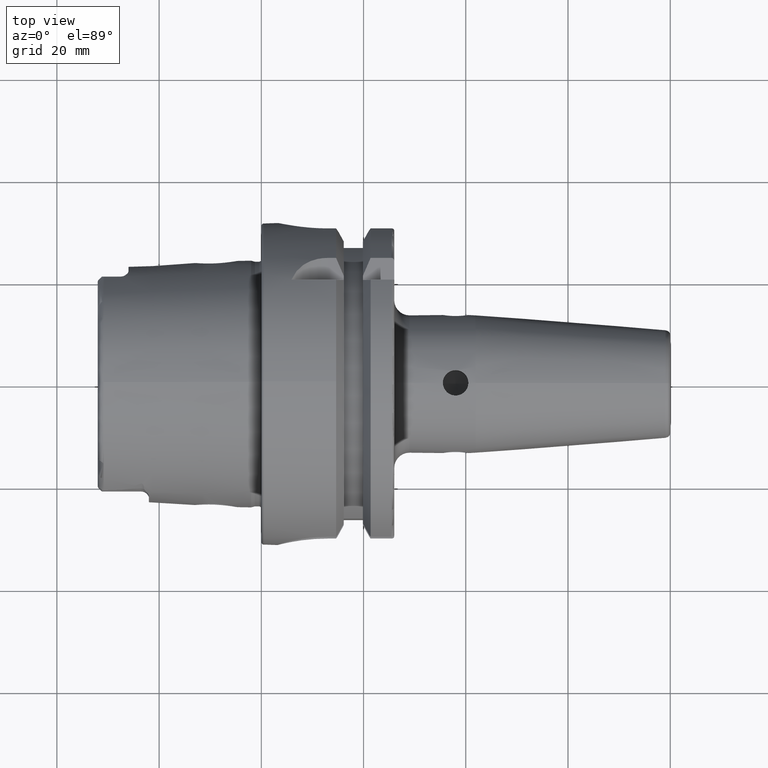
[diagram: clean part render]
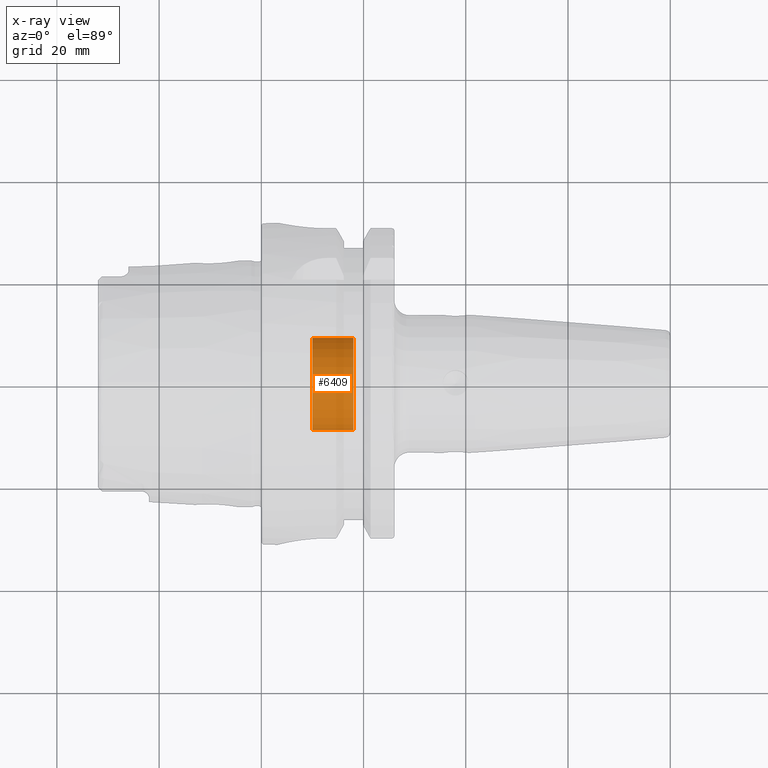
[diagram: x-ray — body ghosted, one internal face saturated and labeled with its STEP entity id]
A machine part, top view, then the same camera in x-ray: the body is ghosted and one INTERNAL B-rep face — a face not visible from any outside direction — is saturated and labeled: STEP entity #6409.
In plain terms, the highlighted cylindrical surface (partial cylindrical patch) has radius 9 mm, axis along (-1, 0, 0).
Its self-contained STEP definition (entity closure, byte-faithful):
#6335=CARTESIAN_POINT('',(1.E1,0.E0,0.E0));
#6336=DIRECTION('',(1.E0,0.E0,0.E0));
#6337=DIRECTION('',(0.E0,1.E0,0.E0));
#6338=AXIS2_PLACEMENT_3D('',#6335,#6336,#6337);
#6340=DIRECTION('',(1.E0,0.E0,0.E0));
#6341=VECTOR('',#6340,8.E0);
#6342=CARTESIAN_POINT('',(1.E1,-9.E0,0.E0));
#6343=LINE('',#6342,#6341);
#6344=DIRECTION('',(1.E0,0.E0,0.E0));
#6345=VECTOR('',#6344,8.E0);
#6346=CARTESIAN_POINT('',(1.E1,9.E0,0.E0));
#6347=LINE('',#6346,#6345);
#6348=CARTESIAN_POINT('',(1.8E1,0.E0,0.E0));
#6349=DIRECTION('',(1.E0,0.E0,0.E0));
#6350=DIRECTION('',(0.E0,1.E0,0.E0));
#6351=AXIS2_PLACEMENT_3D('',#6348,#6349,#6350);
#6368=CARTESIAN_POINT('',(1.8E1,9.E0,0.E0));
#6369=CARTESIAN_POINT('',(1.8E1,-9.E0,0.E0));
#6370=VERTEX_POINT('',#6368);
#6371=VERTEX_POINT('',#6369);
#6372=CARTESIAN_POINT('',(1.E1,9.E0,0.E0));
#6373=CARTESIAN_POINT('',(1.E1,-9.E0,0.E0));
#6374=VERTEX_POINT('',#6372);
#6375=VERTEX_POINT('',#6373);
#6396=CARTESIAN_POINT('',(2.376268102482E1,0.E0,0.E0));
#6397=DIRECTION('',(-1.E0,0.E0,0.E0));
#6398=DIRECTION('',(0.E0,1.E0,0.E0));
#6399=AXIS2_PLACEMENT_3D('',#6396,#6397,#6398);
#6400=CYLINDRICAL_SURFACE('',#6399,9.E0);
#6402=ORIENTED_EDGE('',*,*,#6401,.T.);
#6403=ORIENTED_EDGE('',*,*,#6391,.T.);
#6405=ORIENTED_EDGE('',*,*,#6404,.F.);
#6406=ORIENTED_EDGE('',*,*,#6387,.F.);
#6407=EDGE_LOOP('',(#6402,#6403,#6405,#6406));
#6408=FACE_OUTER_BOUND('',#6407,.F.);
#6409=ADVANCED_FACE('',(#6408),#6400,.F.);
#6339=CIRCLE('',#6338,9.E0);
#6352=CIRCLE('',#6351,9.E0);
#6387=EDGE_CURVE('',#6374,#6370,#6347,.T.);
#6391=EDGE_CURVE('',#6375,#6371,#6343,.T.);
#6401=EDGE_CURVE('',#6374,#6375,#6339,.T.);
#6404=EDGE_CURVE('',#6370,#6371,#6352,.T.);